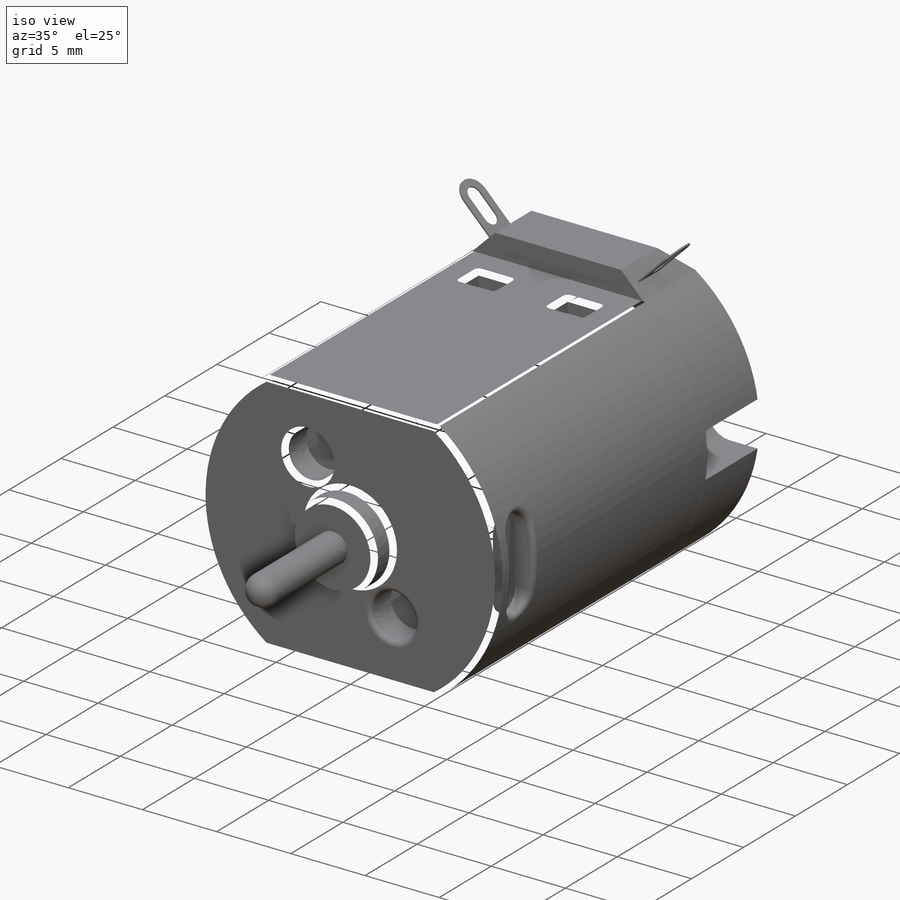
[diagram: iso view]
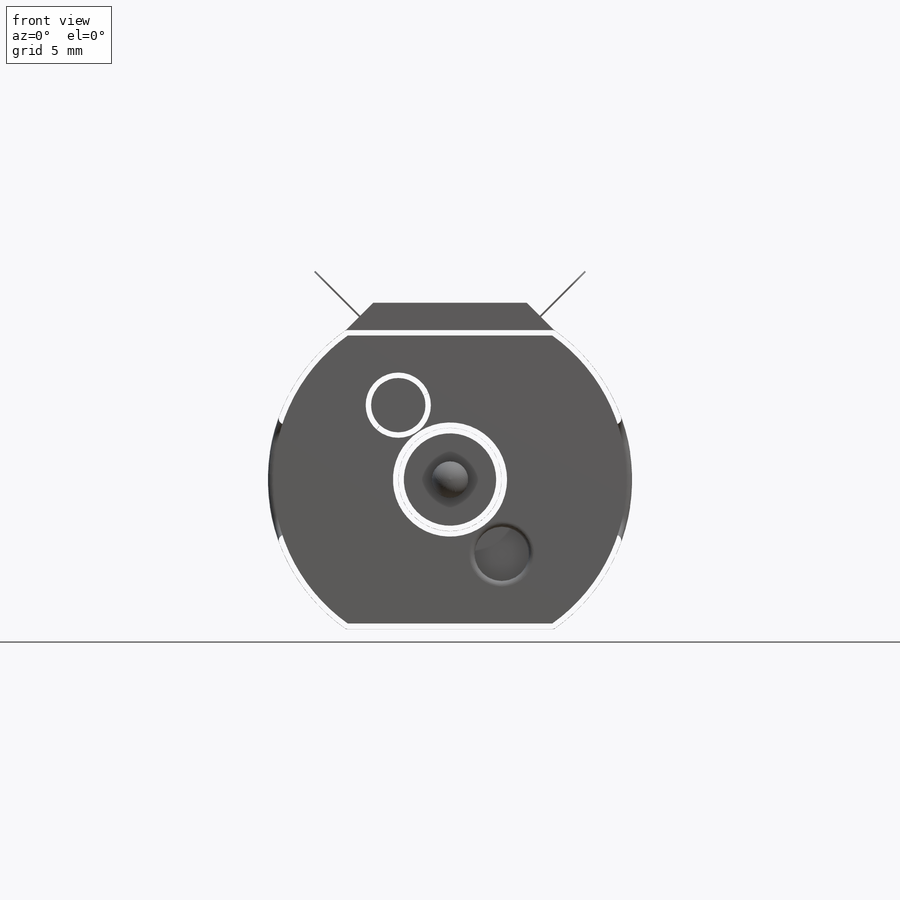
[diagram: front view]
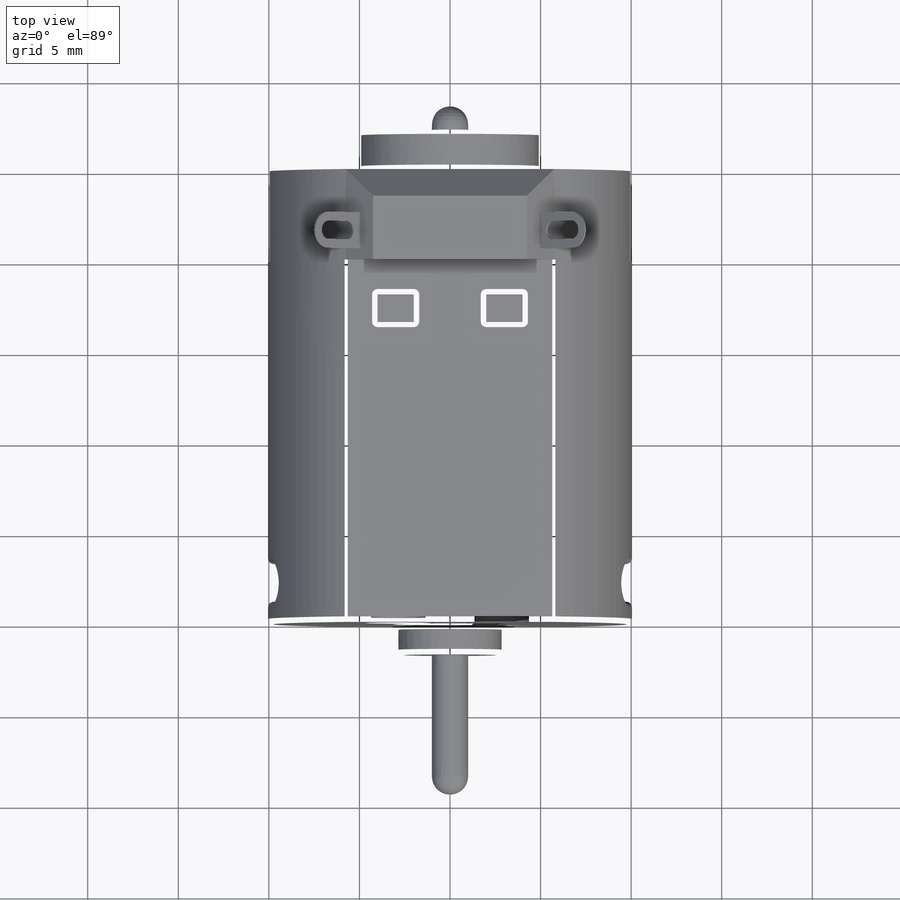
[diagram: top view]
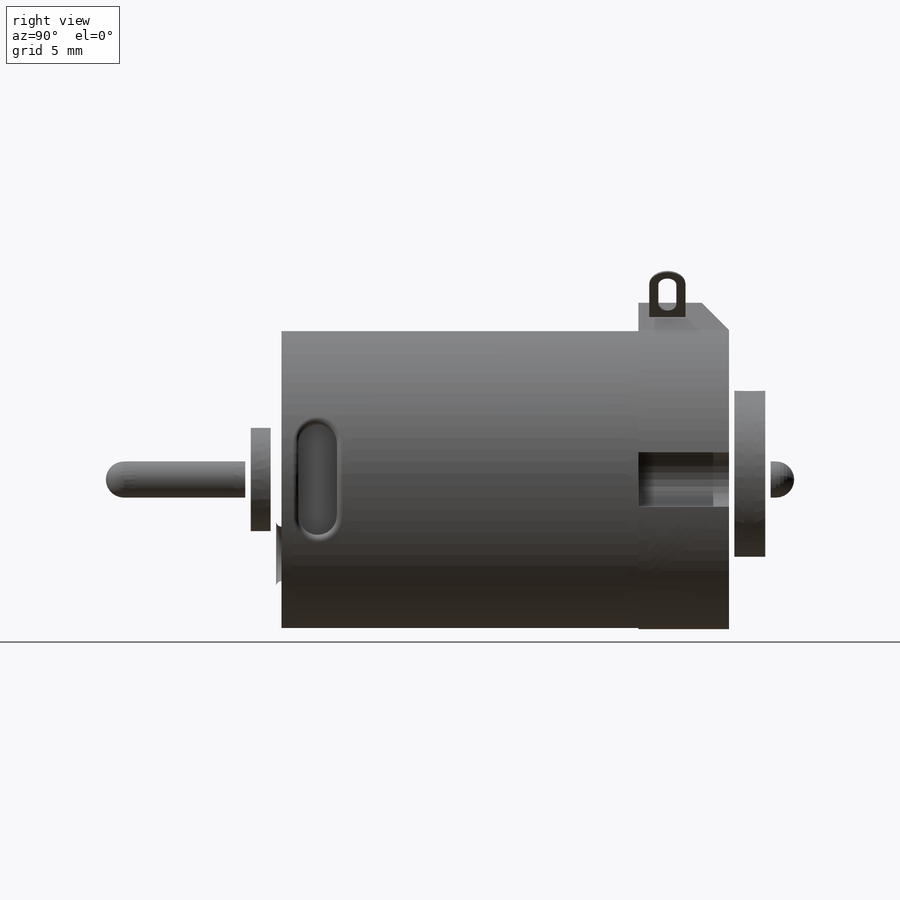
[diagram: right view]
SOLIDWORKS PART (.sldprt)
format: sldprt  version: not decoded by parser v0  size: 822,272 bytes
history: native  units: mm
features: sketch x16, extrude x10, cut_extrude x6, fillet x5, material x1, chamfer x1 (+14 scaffold rows collapsed)
feature tree (53):
  scaffold x14  (default folders/planes/origin — collapsed)
  material  "Material <not specified>"
  sketch  "Sketch1"  dims[D1=8.25mm]
  extrude  "Extrude1"  Depth=20mm
  sketch  "Sketch2"  dims[D1=0.01mm]
  extrude  "Extrude2"  Depth=5mm
  sketch  "Sketch4"  dims[D1=~4.208734mm]
  extrude  "Extrude3"  Depth=1.7mm
  sketch  "Sketch5"  dims[D1=~1.250149mm]
  extrude  "Extrude4"  Depth=7.7mm
  sketch  "Sketch6"  dims[D1=4.0mm]
  extrude  "Extrude5"  Depth=2.3mm
  sketch  "Sketch7"  dims[D1=~1.182703mm]
  extrude  "Extrude6"  Depth=1.3mm
  sketch  "Sketch9"
  extrude  "Extrude7"  Depth=1.5mm
  chamfer  "Chamfer1"  Distance=1.5mm Angle=45deg
  sketch  "Sketch10"  dims[D1=0.3mm]
  extrude  "Extrude8"  Depth=3.5mm
  sketch  "Sketch11"  dims[D1=0.3mm]
  extrude  "Extrude9"  Depth=3.5mm
  fillet  "Fillet5"  Radius=1mm
  fillet  "Fillet6"  Radius=1mm
  sketch  "Sketch12"  dims[D1=1.5mm]
  cut_extrude  "Cut-Extrude1"  Depth=3.5mm
  sketch  "Sketch13"  dims[D1=1.5mm]
  cut_extrude  "Cut-Extrude2"  Depth=3.5mm
  sketch  "Sketch14"  dims[D1=2.0mm]
  cut_extrude  "Cut-Extrude3"  Depth=5mm
  sketch  "Sketch15"  dims[D1=~1.475228mm]
  sketch  "Sketch19"  dims[D1=2.0mm]
  cut_extrude  "Cut-Extrude5"  Depth=1mm
  sketch  "Sketch20"  dims[D1=2.0mm]
  cut_extrude  "Cut-Extrude6"  Depth=31mm
  sketch  "Sketch21"
  extrude  "Extrude10"  Depth=17.5mm
  cut_extrude  "Cut-Extrude7"  Depth=2mm
  fillet  "Fillet8"  Radius=1mm
  fillet  "Fillet9"  Radius=0.3mm
  fillet  "Fillet14"  Radius=0.3mm
decode coverage: 36 of 38 modeling features carry decoded parameters
note: ~ marks probable driven/reference dimensions
note: suppression state not decoded; provenance and decode notes live in map.json
